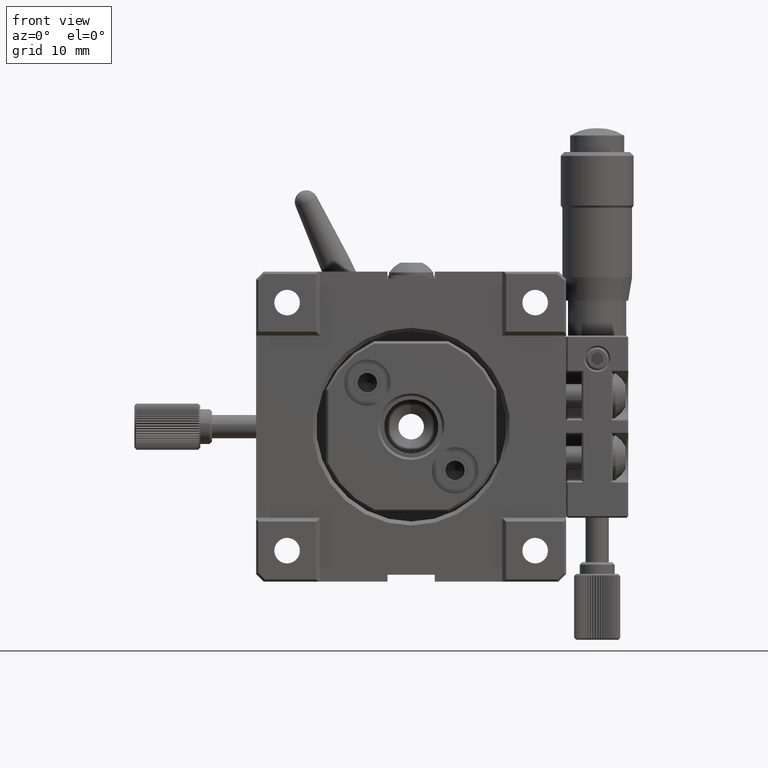
[diagram: clean part render]
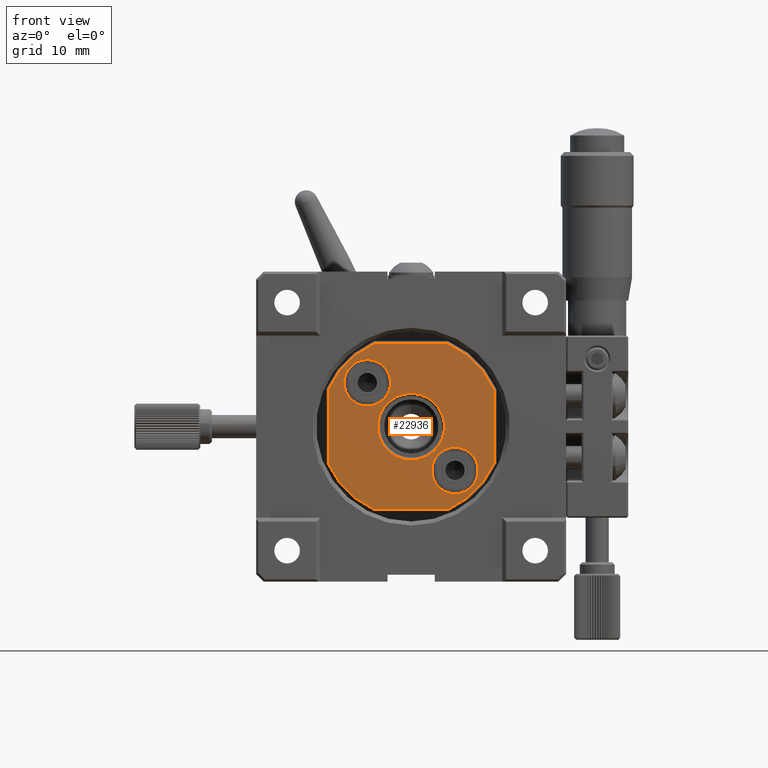
[diagram: same view with one face highlighted and labeled with its STEP entity id]
A machine part, front view. The second image highlights one B-rep face of the part: STEP entity #22936.
In plain terms, the highlighted planar face has unit normal (0, 1, 0).
Its self-contained STEP definition (entity closure, byte-faithful):
#568 = DIRECTION ( 'NONE',  ( 0.000000000000000000, 0.000000000000000000, -1.000000000000000000 ) ) ;
#961 = CARTESIAN_POINT ( 'NONE',  ( 4.732863826479698943, 0.5000000000000000000, 10.69999999999999929 ) ) ;
#1260 = CARTESIAN_POINT ( 'NONE',  ( -2.407412430484044816E-31, 0.5000000000000000000, 0.000000000000000000 ) ) ;
#1431 = ORIENTED_EDGE ( 'NONE', *, *, #29994, .T. ) ;
#1508 = CARTESIAN_POINT ( 'NONE',  ( 4.732863826479690061, 0.5000000000000000000, -10.69999999999999929 ) ) ;
#2668 = ORIENTED_EDGE ( 'NONE', *, *, #24181, .T. ) ;
#3542 = FACE_BOUND ( 'NONE', #43822, .T. ) ;
#4688 = DIRECTION ( 'NONE',  ( 0.000000000000000000, -1.000000000000000000, 0.000000000000000000 ) ) ;
#5898 = ORIENTED_EDGE ( 'NONE', *, *, #7171, .T. ) ;
#6379 = DIRECTION ( 'NONE',  ( -1.000000000000000000, 3.501690807976790171E-32, 1.577021341797100025E-16 ) ) ;
#6533 = CARTESIAN_POINT ( 'NONE',  ( -2.407412430484044816E-31, 0.5000000000000000000, 0.000000000000000000 ) ) ;
#6941 = DIRECTION ( 'NONE',  ( -2.762346980584664762E-62, -1.000000000000000000, 3.110126208107280173E-47 ) ) ;
#7171 = EDGE_CURVE ( 'NONE', #63610, #21198, #71460, .T. ) ;
#8875 = EDGE_CURVE ( 'NONE', #73532, #68874, #76131, .T. ) ;
#10499 = FACE_OUTER_BOUND ( 'NONE', #48868, .T. ) ;
#11232 = ORIENTED_EDGE ( 'NONE', *, *, #54994, .T. ) ;
#12284 = AXIS2_PLACEMENT_3D ( 'NONE', #54759, #4688, #73690 ) ;
#13794 = CIRCLE ( 'NONE', #29528, 3.000000000000000000 ) ;
#14744 = ORIENTED_EDGE ( 'NONE', *, *, #73696, .T. ) ;
#14962 = AXIS2_PLACEMENT_3D ( 'NONE', #6533, #6941, #50821 ) ;
#15156 = CARTESIAN_POINT ( 'NONE',  ( 5.265981236333617484E-16, 0.5000000000000000000, 4.299999999999999822 ) ) ;
#15822 = ORIENTED_EDGE ( 'NONE', *, *, #69103, .T. ) ;
#16034 = CARTESIAN_POINT ( 'NONE',  ( -4.814824860968089633E-32, 0.5000000000000000000, 0.000000000000000000 ) ) ;
#17029 = DIRECTION ( 'NONE',  ( 0.000000000000000000, 0.000000000000000000, -1.000000000000000000 ) ) ;
#17346 = ORIENTED_EDGE ( 'NONE', *, *, #42218, .T. ) ;
#17360 = DIRECTION ( 'NONE',  ( 0.000000000000000000, -1.000000000000000000, 0.000000000000000000 ) ) ;
#17643 = AXIS2_PLACEMENT_3D ( 'NONE', #21983, #66743, #41697 ) ;
#18039 = EDGE_CURVE ( 'NONE', #39269, #27091, #61456, .T. ) ;
#19005 = CARTESIAN_POINT ( 'NONE',  ( -4.814824860968089633E-32, 0.5000000000000000000, -4.299999999999999822 ) ) ;
#20924 = LINE ( 'NONE', #34051, #39848 ) ;
#20987 = VERTEX_POINT ( 'NONE', #69445 ) ;
#20990 = DIRECTION ( 'NONE',  ( -2.365532012695645231E-16, 8.283361704831179128E-48, -1.000000000000000000 ) ) ;
#21198 = VERTEX_POINT ( 'NONE', #43471 ) ;
#21917 = EDGE_CURVE ( 'NONE', #27091, #39269, #13794, .T. ) ;
#21983 = CARTESIAN_POINT ( 'NONE',  ( -12.00000000000000000, 0.5000000000000000000, 0.000000000000000000 ) ) ;
#22936 = ADVANCED_FACE ( 'NONE', ( #10499, #3542, #71310, #35126 ), #53182, .F. ) ;
#23681 = EDGE_CURVE ( 'NONE', #28253, #75158, #54494, .T. ) ;
#23795 = CARTESIAN_POINT ( 'NONE',  ( -4.732863826479690061, 0.5000000000000000000, -10.69999999999999929 ) ) ;
#24181 = EDGE_CURVE ( 'NONE', #21198, #45419, #34436, .T. ) ;
#24574 = CIRCLE ( 'NONE', #69142, 2.999999999999999112 ) ;
#24838 = CARTESIAN_POINT ( 'NONE',  ( -4.795831523312720002, 0.5000000000000000000, 10.69999999999999929 ) ) ;
#25348 = EDGE_LOOP ( 'NONE', ( #62788, #60412 ) ) ;
#26294 = VERTEX_POINT ( 'NONE', #62278 ) ;
#27091 = VERTEX_POINT ( 'NONE', #45108 ) ;
#27509 = ORIENTED_EDGE ( 'NONE', *, *, #21917, .F. ) ;
#28253 = VERTEX_POINT ( 'NONE', #78775 ) ;
#28302 = DIRECTION ( 'NONE',  ( 0.000000000000000000, 0.000000000000000000, -1.000000000000000000 ) ) ;
#28715 = VERTEX_POINT ( 'NONE', #66748 ) ;
#29057 = AXIS2_PLACEMENT_3D ( 'NONE', #29262, #17360, #66239 ) ;
#29262 = CARTESIAN_POINT ( 'NONE',  ( -2.407412430484044816E-31, 0.5000000000000000000, 0.000000000000000000 ) ) ;
#29490 = DIRECTION ( 'NONE',  ( 1.000000000000000000, -3.501690807976790171E-32, 0.000000000000000000 ) ) ;
#29528 = AXIS2_PLACEMENT_3D ( 'NONE', #48222, #73326, #17029 ) ;
#29994 = EDGE_CURVE ( 'NONE', #20987, #50243, #33198, .T. ) ;
#31638 = DIRECTION ( 'NONE',  ( -1.000000000000000000, 0.000000000000000000, 0.000000000000000000 ) ) ;
#32169 = AXIS2_PLACEMENT_3D ( 'NONE', #52183, #64536, #52995 ) ;
#32840 = AXIS2_PLACEMENT_3D ( 'NONE', #76808, #63663, #31638 ) ;
#33198 = CIRCLE ( 'NONE', #12284, 11.70000000000000107 ) ;
#34051 = CARTESIAN_POINT ( 'NONE',  ( 4.795831523312710232, 0.5000000000000000000, -10.69999999999999929 ) ) ;
#34436 = LINE ( 'NONE', #59052, #72946 ) ;
#35126 = FACE_BOUND ( 'NONE', #25348, .T. ) ;
#35930 = EDGE_CURVE ( 'NONE', #75158, #28253, #24574, .T. ) ;
#37911 = CIRCLE ( 'NONE', #60235, 4.299999999999999822 ) ;
#39269 = VERTEX_POINT ( 'NONE', #74549 ) ;
#39848 = VECTOR ( 'NONE', #29490, 1000.000000000000000 ) ;
#40282 = DIRECTION ( 'NONE',  ( -1.000000000000000000, 0.000000000000000000, 0.000000000000000000 ) ) ;
#41609 = VECTOR ( 'NONE', #6379, 1000.000000000000000 ) ;
#41697 = DIRECTION ( 'NONE',  ( 1.000000000000000000, -3.501690807976790171E-32, 0.000000000000000000 ) ) ;
#42218 = EDGE_CURVE ( 'NONE', #68874, #73532, #37911, .T. ) ;
#42853 = DIRECTION ( 'NONE',  ( -1.000000000000000000, 0.000000000000000000, 0.000000000000000000 ) ) ;
#43471 = CARTESIAN_POINT ( 'NONE',  ( 10.69999999999999929, 0.5000000000000000000, -4.732863826479690061 ) ) ;
#43810 = ORIENTED_EDGE ( 'NONE', *, *, #49236, .T. ) ;
#43822 = EDGE_LOOP ( 'NONE', ( #17346, #53120 ) ) ;
#44756 = DIRECTION ( 'NONE',  ( 0.000000000000000000, -1.000000000000000000, 0.000000000000000000 ) ) ;
#45108 = CARTESIAN_POINT ( 'NONE',  ( -5.656854249492349496, 0.5000000000000000000, 8.656854249492411668 ) ) ;
#45419 = VERTEX_POINT ( 'NONE', #65086 ) ;
#45533 = DIRECTION ( 'NONE',  ( 1.577021341797100025E-16, -5.522241136554129142E-48, 1.000000000000000000 ) ) ;
#48222 = CARTESIAN_POINT ( 'NONE',  ( -5.656854249492349496, 0.5000000000000000000, 5.656854249492410780 ) ) ;
#48868 = EDGE_LOOP ( 'NONE', ( #2668, #15822, #60395, #43810, #11232, #1431, #14744, #5898 ) ) ;
#49236 = EDGE_CURVE ( 'NONE', #28715, #26294, #50342, .T. ) ;
#50243 = VERTEX_POINT ( 'NONE', #23795 ) ;
#50260 = LINE ( 'NONE', #24838, #41609 ) ;
#50342 = CIRCLE ( 'NONE', #14962, 11.70000000000000107 ) ;
#50821 = DIRECTION ( 'NONE',  ( -1.000000000000000000, 0.000000000000000000, -8.881784197001251337E-16 ) ) ;
#50971 = LINE ( 'NONE', #65348, #73161 ) ;
#52183 = CARTESIAN_POINT ( 'NONE',  ( 5.656854249492390352, 0.5000000000000000000, -5.656854249492370812 ) ) ;
#52281 = AXIS2_PLACEMENT_3D ( 'NONE', #59100, #53345, #28302 ) ;
#52995 = DIRECTION ( 'NONE',  ( 0.000000000000000000, 0.000000000000000000, -1.000000000000000000 ) ) ;
#53120 = ORIENTED_EDGE ( 'NONE', *, *, #8875, .T. ) ;
#53182 = PLANE ( 'NONE',  #17643 ) ;
#53345 = DIRECTION ( 'NONE',  ( 0.000000000000000000, -1.000000000000000000, 0.000000000000000000 ) ) ;
#54494 = CIRCLE ( 'NONE', #32169, 2.999999999999999112 ) ;
#54545 = EDGE_CURVE ( 'NONE', #79723, #28715, #50260, .T. ) ;
#54759 = CARTESIAN_POINT ( 'NONE',  ( -2.407412430484044816E-31, 0.5000000000000000000, 0.000000000000000000 ) ) ;
#54994 = EDGE_CURVE ( 'NONE', #26294, #20987, #50971, .T. ) ;
#56997 = AXIS2_PLACEMENT_3D ( 'NONE', #1260, #44756, #42853 ) ;
#59052 = CARTESIAN_POINT ( 'NONE',  ( 10.69999999999999929, 0.5000000000000000000, 4.795831523312710232 ) ) ;
#59100 = CARTESIAN_POINT ( 'NONE',  ( -5.656854249492349496, 0.5000000000000000000, 5.656854249492410780 ) ) ;
#60235 = AXIS2_PLACEMENT_3D ( 'NONE', #16034, #78482, #40282 ) ;
#60395 = ORIENTED_EDGE ( 'NONE', *, *, #54545, .T. ) ;
#60412 = ORIENTED_EDGE ( 'NONE', *, *, #23681, .F. ) ;
#61456 = CIRCLE ( 'NONE', #52281, 3.000000000000000000 ) ;
#62278 = CARTESIAN_POINT ( 'NONE',  ( -10.69999999999999929, 0.5000000000000000000, 4.732863826479690061 ) ) ;
#62558 = DIRECTION ( 'NONE',  ( 0.000000000000000000, -1.000000000000000000, 0.000000000000000000 ) ) ;
#62788 = ORIENTED_EDGE ( 'NONE', *, *, #35930, .F. ) ;
#62954 = CARTESIAN_POINT ( 'NONE',  ( 5.656854249492390352, 0.5000000000000000000, -5.656854249492370812 ) ) ;
#63610 = VERTEX_POINT ( 'NONE', #1508 ) ;
#63663 = DIRECTION ( 'NONE',  ( 0.000000000000000000, 1.000000000000000000, 0.000000000000000000 ) ) ;
#64536 = DIRECTION ( 'NONE',  ( 0.000000000000000000, -1.000000000000000000, 0.000000000000000000 ) ) ;
#65086 = CARTESIAN_POINT ( 'NONE',  ( 10.69999999999999929, 0.5000000000000000000, 4.732863826479679403 ) ) ;
#65348 = CARTESIAN_POINT ( 'NONE',  ( -10.69999999999999929, 0.5000000000000000000, -4.795831523312720002 ) ) ;
#66239 = DIRECTION ( 'NONE',  ( -1.000000000000000000, 0.000000000000000000, 0.000000000000000000 ) ) ;
#66743 = DIRECTION ( 'NONE',  ( 3.501690807976790171E-32, 1.000000000000000000, 0.000000000000000000 ) ) ;
#66748 = CARTESIAN_POINT ( 'NONE',  ( -4.732863826479690061, 0.5000000000000000000, 10.69999999999999929 ) ) ;
#68874 = VERTEX_POINT ( 'NONE', #19005 ) ;
#69103 = EDGE_CURVE ( 'NONE', #45419, #79723, #75004, .T. ) ;
#69142 = AXIS2_PLACEMENT_3D ( 'NONE', #62954, #62558, #568 ) ;
#69445 = CARTESIAN_POINT ( 'NONE',  ( -10.69999999999999929, 0.5000000000000000000, -4.732863826479698943 ) ) ;
#71310 = FACE_BOUND ( 'NONE', #79900, .T. ) ;
#71460 = CIRCLE ( 'NONE', #56997, 11.70000000000000107 ) ;
#72946 = VECTOR ( 'NONE', #45533, 1000.000000000000000 ) ;
#73161 = VECTOR ( 'NONE', #20990, 1000.000000000000000 ) ;
#73326 = DIRECTION ( 'NONE',  ( 0.000000000000000000, -1.000000000000000000, 0.000000000000000000 ) ) ;
#73465 = ORIENTED_EDGE ( 'NONE', *, *, #18039, .F. ) ;
#73532 = VERTEX_POINT ( 'NONE', #15156 ) ;
#73690 = DIRECTION ( 'NONE',  ( -1.000000000000000000, 0.000000000000000000, 0.000000000000000000 ) ) ;
#73696 = EDGE_CURVE ( 'NONE', #50243, #63610, #20924, .T. ) ;
#74549 = CARTESIAN_POINT ( 'NONE',  ( -5.656854249492349496, 0.5000000000000000000, 2.656854249492410336 ) ) ;
#75004 = CIRCLE ( 'NONE', #29057, 11.70000000000000107 ) ;
#75158 = VERTEX_POINT ( 'NONE', #80846 ) ;
#76131 = CIRCLE ( 'NONE', #32840, 4.299999999999999822 ) ;
#76808 = CARTESIAN_POINT ( 'NONE',  ( -4.814824860968089633E-32, 0.5000000000000000000, 0.000000000000000000 ) ) ;
#78482 = DIRECTION ( 'NONE',  ( 0.000000000000000000, 1.000000000000000000, 0.000000000000000000 ) ) ;
#78775 = CARTESIAN_POINT ( 'NONE',  ( 5.656854249492390352, 0.5000000000000000000, -2.656854249492370368 ) ) ;
#79723 = VERTEX_POINT ( 'NONE', #961 ) ;
#79900 = EDGE_LOOP ( 'NONE', ( #73465, #27509 ) ) ;
#80846 = CARTESIAN_POINT ( 'NONE',  ( 5.656854249492390352, 0.5000000000000000000, -8.656854249492369036 ) ) ;